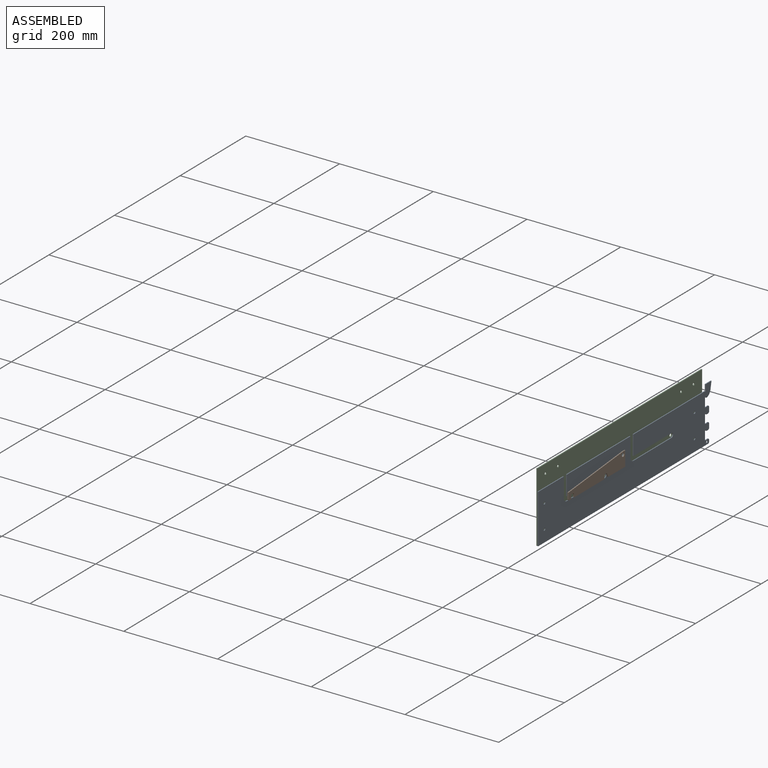
[diagram: assembled view]
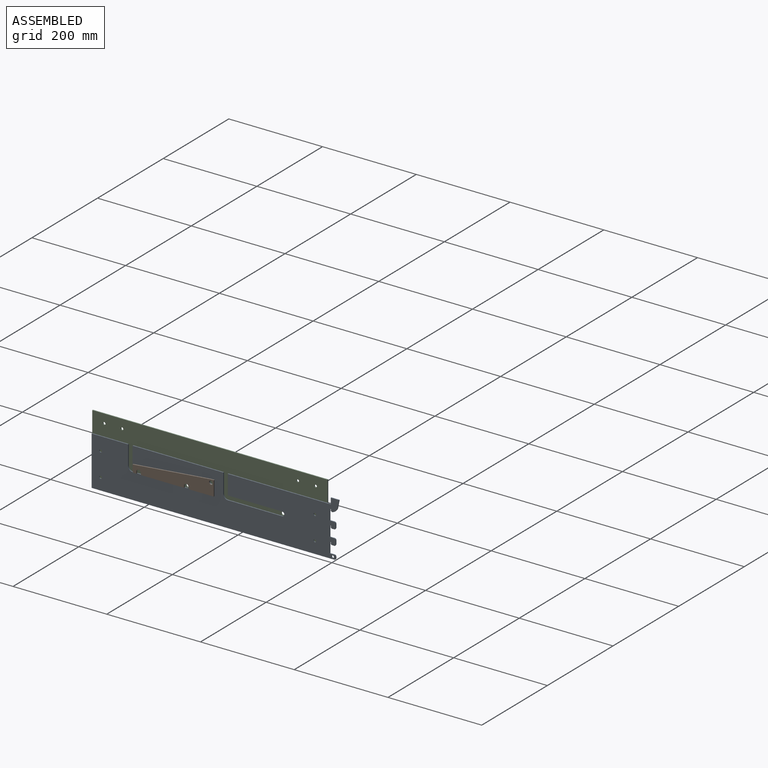
[diagram: assembled view, second angle]
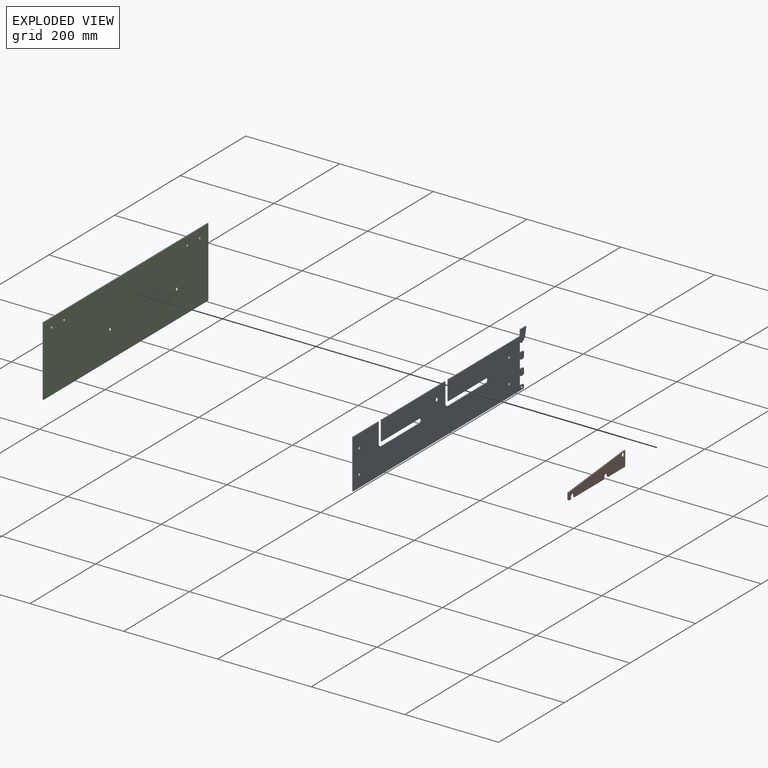
[diagram: exploded view]
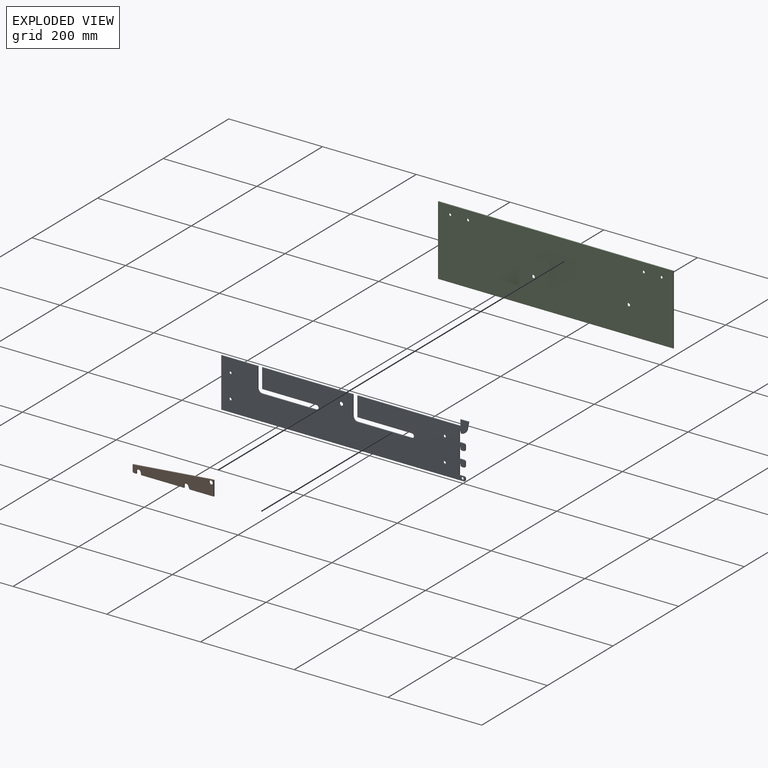
[diagram: exploded view, second angle]
ASSEMBLY  parts=3 mates=2
PART A: 61 faces, bbox 1.9x527.9x117.5 mm
  f0: plane 116.08x1.9mm, normal (0,0,1), area 220.2mm2, adj f1,f58,f59,f60
  f1: cylinder r=4.57mm len=9.14mm, axis (1,0,0), area 27.3mm2, adj f0,f2,f59,f60
  f2: plane 116.08x1.9mm, normal (0,0,-1), area 220.2mm2, adj f1,f3,f59,f60
  f3: plane 41.66x1.9mm, normal (0,-1,0), area 79mm2, adj f2,f4,f59,f60
  f4: plane 219.79x1.9mm, normal (0,0,1), area 417mm2, adj f3,f5,f59,f60
  f5: plane 12.7x1.9mm, normal (0,-1,0), area 24.1mm2, adj f4,f6,f59,f60
  f6: plane 17.78x1.9mm, normal (0,0,1), area 33.7mm2, adj f5,f7,f59,f60
  f7: plane 12.7x2.55mm, normal (0,0.98,-0.2), area 24.6mm2, adj f6,f8,f59,f60
  f8: cylinder r=15.24mm len=14.07mm, axis (1,0,0), area 36.5mm2, adj f7,f9,f59,f60
  f9: cylinder r=3.17mm len=4.01mm, axis (1,0,0), area 11.1mm2, adj f8,f10,f59,f60
  f10: plane 1.9x1.23mm, normal (0,-1,0), area 2.3mm2, adj f9,f11,f59,f60
  f11: cylinder r=0.25mm len=1.9mm, axis (1,0,0), area 0.8mm2, adj f10,f12,f59,f60
  f12: plane 1.9x1.6mm, normal (0,0,-1), area 3mm2, adj f11,f13,f59,f60
  f13: cylinder r=0.25mm len=1.9mm, axis (1,0,0), area 0.8mm2, adj f12,f14,f59,f60
  f14: plane 21.97x1.9mm, normal (0,1,0), area 41.7mm2, adj f13,f15,f59,f60
  f15: plane 9.53x1.9mm, normal (0,0,1), area 18.1mm2, adj f14,f16,f59,f60
  f16: cylinder r=3.17mm len=3.18mm, axis (1,0,0), area 9.5mm2, adj f15,f17,f59,f60
  f17: plane 8.26x1.9mm, normal (0,1,0), area 15.7mm2, adj f16,f18,f59,f60
  f18: cylinder r=3.17mm len=3.18mm, axis (1,0,0), area 9.5mm2, adj f17,f19,f59,f60
  f19: plane 4.24x1.9mm, normal (0,0,-1), area 8mm2, adj f18,f20,f59,f60
  f20: cylinder r=3.17mm len=3.18mm, axis (1,0,0), area 9.5mm2, adj f19,f21,f59,f60
  f21: plane 1.9x1.65mm, normal (0,-1,0), area 3.1mm2, adj f20,f22,f59,f60
  f22: cylinder r=0.25mm len=1.9mm, axis (1,0,0), area 0.8mm2, adj f21,f23,f59,f60
  f23: plane 1.9x1.6mm, normal (0,0,-1), area 3mm2, adj f22,f24,f59,f60
  f24: cylinder r=0.25mm len=1.9mm, axis (1,0,0), area 0.8mm2, adj f23,f25,f59,f60
  f25: plane 21.97x1.9mm, normal (0,1,0), area 41.7mm2, adj f24,f26,f59,f60
  f26: plane 9.53x1.9mm, normal (0,0,1), area 18.1mm2, adj f25,f27,f59,f60
  f27: cylinder r=3.17mm len=3.18mm, axis (1,0,0), area 9.5mm2, adj f26,f28,f59,f60
  f28: plane 8.26x1.9mm, normal (0,1,0), area 15.7mm2, adj f27,f29,f59,f60
  f29: cylinder r=3.17mm len=3.18mm, axis (1,0,0), area 9.5mm2, adj f28,f30,f59,f60
  f30: plane 4.24x1.9mm, normal (0,0,-1), area 8mm2, adj f29,f31,f59,f60
  f31: cylinder r=3.17mm len=3.18mm, axis (1,0,0), area 9.5mm2, adj f30,f32,f59,f60
  f32: plane 1.9x1.65mm, normal (0,-1,0), area 3.1mm2, adj f31,f33,f59,f60
  f33: cylinder r=0.25mm len=1.9mm, axis (1,0,0), area 0.8mm2, adj f32,f34,f59,f60
  f34: plane 1.9x1.6mm, normal (0,0,-1), area 3mm2, adj f33,f35,f59,f60
  f35: cylinder r=0.25mm len=1.9mm, axis (1,0,0), area 0.8mm2, adj f34,f36,f59,f60
  f36: plane 21.97x1.9mm, normal (0,1,0), area 41.7mm2, adj f35,f37,f59,f60
  f37: plane 9.53x1.9mm, normal (0,0,1), area 18.1mm2, adj f36,f38,f59,f60
  f38: cylinder r=3.17mm len=3.18mm, axis (1,0,0), area 9.5mm2, adj f37,f39,f59,f60
  f39: plane 3.18x1.9mm, normal (0,1,0), area 6mm2, adj f38,f40,f59,f60
  f40: cylinder r=3.17mm len=3.18mm, axis (1,0,0), area 9.5mm2, adj f39,f41,f59,f60
  f41: plane 517.53x1.9mm, normal (0,0,-1), area 981.9mm2, adj f40,f42,f59,f60
  f42: plane 104.78x1.9mm, normal (0,-1,0), area 198.8mm2, adj f41,f43,f59,f60
  f43: plane 77.98x1.9mm, normal (0,0,1), area 148mm2, adj f42,f44,f59,f60
  f44: plane 41.66x1.9mm, normal (0,1,0), area 79mm2, adj f43,f45,f59,f60
  f45: cylinder r=9.14mm len=9.14mm, axis (1,0,0), area 27.3mm2, adj f44,f46,f59,f60
  f46: plane 116.08x1.9mm, normal (0,0,1), area 220.2mm2, adj f45,f47,f59,f60
  f47: cylinder r=4.57mm len=9.14mm, axis (1,0,0), area 27.3mm2, adj f46,f48,f59,f60
  f48: plane 116.08x1.9mm, normal (0,0,-1), area 220.2mm2, adj f47,f49,f59,f60
  f49: plane 41.66x1.9mm, normal (0,-1,0), area 79mm2, adj f48,f50,f59,f60
  f50: plane 194.06x1.9mm, normal (0,0,1), area 368.2mm2, adj f49,f51,f59,f60
  f51: plane 41.66x1.9mm, normal (0,1,0), area 79mm2, adj f50,f58,f59,f60
  f52: cylinder r=2.54mm len=5.08mm, axis (1,0,0), area 30.3mm2, adj f59,f60
  f53: cylinder r=3.94mm len=7.87mm, axis (1,0,0), area 46.9mm2, adj f59,f60
  f54: cylinder r=2.74mm len=5.47mm, axis (1,0,0), area 32.6mm2, adj f59,f60
  f55: cylinder r=2.74mm len=5.47mm, axis (1,0,0), area 32.6mm2, adj f59,f60
  f56: cylinder r=2.74mm len=5.47mm, axis (1,0,0), area 32.6mm2, adj f59,f60
  f57: cylinder r=2.74mm len=5.47mm, axis (1,0,0), area 32.6mm2, adj f59,f60
  f58: cylinder r=9.14mm len=9.14mm, axis (1,0,0), area 27.3mm2, adj f0,f51,f59,f60
  f59: plane 527.89x117.48mm, normal (-1,0,0), area 50833.5mm2, adj f0,f1,f2,f3,f4,f5,f6,f7
  f60: plane 527.89x117.48mm, normal (1,0,0), area 50833.5mm2, adj f0,f1,f2,f3,f4,f5,f6,f7
PART B: 17 faces, bbox 2.1x173.2x31.8 mm
  f0: plane 12.7x2.11mm, normal (0,-1,0), area 26.8mm2, adj f1,f13,f15,f16
  f1: cylinder r=3.17mm len=3.18mm, axis (-1,0,0), area 10.5mm2, adj f0,f2,f15,f16
  f2: plane 4.95x2.11mm, normal (0,0,-1), area 10.4mm2, adj f1,f3,f15,f16
  f3: plane 4.57x2.11mm, normal (0,1,0), area 9.6mm2, adj f2,f4,f15,f16
  f4: cylinder r=4.57mm len=9.1mm, axis (-1,0,0), area 29mm2, adj f3,f5,f15,f16
  f5: cylinder r=151.01mm len=5.18mm, axis (-1,0,0), area 11.1mm2, adj f4,f6,f15,f16
  f6: plane 91.71x2.11mm, normal (0,0,-1), area 193.3mm2, adj f5,f7,f15,f16
  f7: plane 4.57x2.11mm, normal (0,1,0), area 9.6mm2, adj f6,f8,f15,f16
  f8: cylinder r=4.57mm len=8.82mm, axis (-1,0,0), area 26.6mm2, adj f7,f9,f15,f16
  f9: cylinder r=51.98mm len=6.26mm, axis (-1,0,0), area 14.6mm2, adj f8,f10,f15,f16
  f10: plane 51.7x2.11mm, normal (0,0,-1), area 109mm2, adj f9,f11,f15,f16
  f11: plane 31.75x2.11mm, normal (0,1,0), area 66.9mm2, adj f10,f12,f15,f16
  f12: plane 6.35x2.11mm, normal (0,0,1), area 13.4mm2, adj f11,f13,f15,f16
  f13: plane 166.88x15.88mm, normal (0,-0.09,1), area 353.4mm2, adj f0,f12,f15,f16
  f14: cylinder r=3.94mm len=7.87mm, axis (-1,0,0), area 52.2mm2, adj f15,f16
  f15: plane 173.23x31.75mm, normal (1,0,0), area 3966.5mm2, adj f0,f1,f2,f3,f4,f5,f6,f7
  f16: plane 173.23x31.75mm, normal (-1,0,0), area 3966.5mm2, adj f0,f1,f2,f3,f4,f5,f6,f7
PART C: 12 faces, bbox 2.1x501.9x149.2 mm
  f0: plane 149.23x2.11mm, normal (0,1,0), area 314.6mm2, adj f1,f8,f10,f11
  f1: plane 501.9x2.11mm, normal (0,0,1), area 1058.1mm2, adj f0,f2,f10,f11
  f2: plane 149.23x2.11mm, normal (0,-1,0), area 314.6mm2, adj f1,f8,f10,f11
  f3: cylinder r=2.73mm len=5.46mm, axis (-1,0,0), area 36.2mm2, adj f10,f11
  f4: cylinder r=2.73mm len=5.46mm, axis (-1,0,0), area 36.2mm2, adj f10,f11
  f5: cylinder r=2.73mm len=5.46mm, axis (-1,0,0), area 36.2mm2, adj f10,f11
  f6: cylinder r=3.3mm len=6.6mm, axis (-1,0,0), area 43.7mm2, adj f10,f11
  f7: cylinder r=3.3mm len=6.6mm, axis (-1,0,0), area 43.7mm2, adj f10,f11
  f8: plane 501.9x2.11mm, normal (0,0,-1), area 1058.1mm2, adj f0,f2,f10,f11
  f9: cylinder r=2.73mm len=5.46mm, axis (-1,0,0), area 36.2mm2, adj f10,f11
  f10: plane 501.9x149.23mm, normal (1,0,0), area 74734.4mm2, adj f0,f1,f2,f3,f4,f5,f6,f7
  f11: plane 501.9x149.23mm, normal (-1,0,0), area 74734.4mm2, adj f0,f1,f2,f3,f4,f5,f6,f7
PLACE A t=(0,-0.83,66.75)mm
PLACE B t=(0,-0.83,66.75)mm
PLACE C t=(-4.01,-0.83,66.75)mm
MATE fastened C.f10 <-> A.f59  axis (1,0,0) through (0,-510.94,-38.03)mm
MATE revolute A.f53 <-> B.f5  axis (1,0,0) through (1.9,-255.16,41.35)mm
